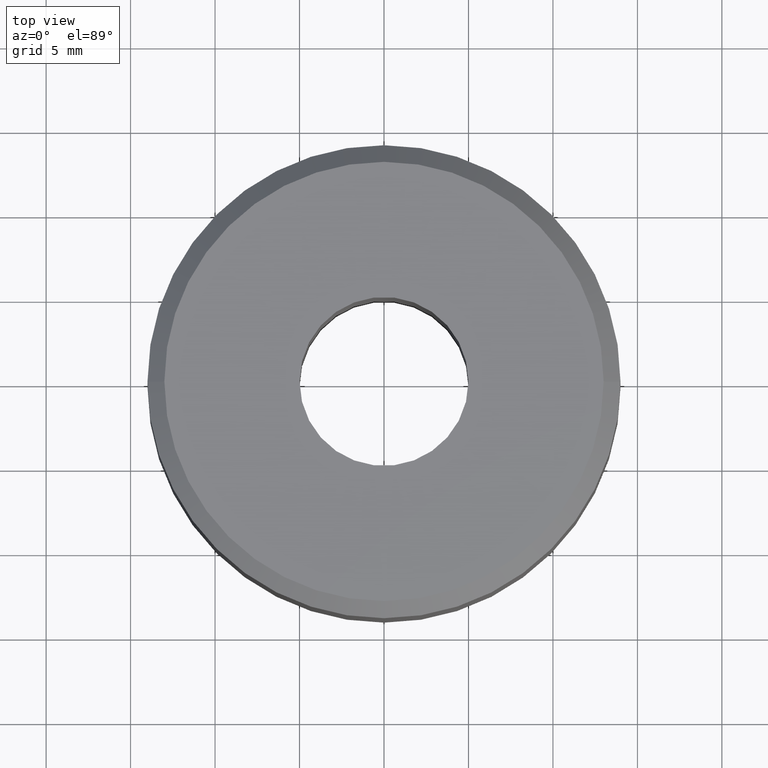
[diagram: clean part render]
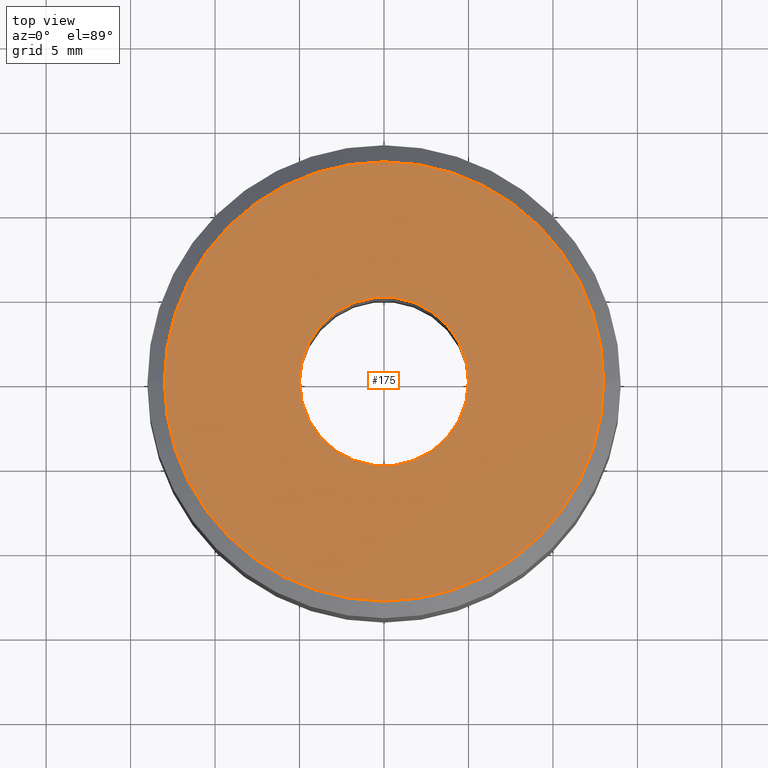
[diagram: same view with one face highlighted and labeled with its STEP entity id]
A machine part, top view. The second image highlights one B-rep face of the part: STEP entity #175.
In plain terms, the highlighted planar face has unit normal (0, 0, 1).
Its self-contained STEP definition (entity closure, byte-faithful):
#1 = DIRECTION ( 'NONE',  ( 0.0000000000000000000, 0.0000000000000000000, 1.000000000000000000 ) ) ;
#8 = ORIENTED_EDGE ( 'NONE', *, *, #141, .F. ) ;
#11 = EDGE_CURVE ( 'NONE', #282, #342, #228, .T. ) ;
#27 = EDGE_CURVE ( 'NONE', #161, #101, #286, .T. ) ;
#33 = CARTESIAN_POINT ( 'NONE',  ( -4.999999999999999100, -5.551115123125782700E-014, 17.50000000000007100 ) ) ;
#35 = CIRCLE ( 'NONE', #50, 4.999999999999999100 ) ;
#38 = CARTESIAN_POINT ( 'NONE',  ( 0.0000000000000000000, -5.551115123125782700E-014, 17.50000000000007100 ) ) ;
#39 = DIRECTION ( 'NONE',  ( -1.000000000000000000, 0.0000000000000000000, 0.0000000000000000000 ) ) ;
#50 = AXIS2_PLACEMENT_3D ( 'NONE', #81, #165, #150 ) ;
#81 = CARTESIAN_POINT ( 'NONE',  ( 0.0000000000000000000, -5.551115123125782700E-014, 17.50000000000007100 ) ) ;
#100 = DIRECTION ( 'NONE',  ( 1.000000000000000000, 0.0000000000000000000, -0.0000000000000000000 ) ) ;
#101 = VERTEX_POINT ( 'NONE', #213 ) ;
#126 = PLANE ( 'NONE',  #181 ) ;
#131 = EDGE_CURVE ( 'NONE', #101, #161, #35, .T. ) ;
#138 = CARTESIAN_POINT ( 'NONE',  ( 0.0000000000000000000, -5.551115123125782700E-014, 17.50000000000007100 ) ) ;
#141 = EDGE_CURVE ( 'NONE', #342, #282, #214, .T. ) ;
#150 = DIRECTION ( 'NONE',  ( -1.000000000000000000, 0.0000000000000000000, 0.0000000000000000000 ) ) ;
#157 = FACE_BOUND ( 'NONE', #314, .T. ) ;
#161 = VERTEX_POINT ( 'NONE', #33 ) ;
#165 = DIRECTION ( 'NONE',  ( -0.0000000000000000000, -0.0000000000000000000, -1.000000000000000000 ) ) ;
#175 = ADVANCED_FACE ( 'NONE', ( #157, #273 ), #126, .T. ) ;
#181 = AXIS2_PLACEMENT_3D ( 'NONE', #278, #1, #100 ) ;
#190 = AXIS2_PLACEMENT_3D ( 'NONE', #226, #250, #39 ) ;
#213 = CARTESIAN_POINT ( 'NONE',  ( 4.999999999999999100, -5.489882783168415100E-014, 17.50000000000007100 ) ) ;
#214 = CIRCLE ( 'NONE', #190, 13.00000000000012300 ) ;
#226 = CARTESIAN_POINT ( 'NONE',  ( 0.0000000000000000000, -5.551115123125782700E-014, 17.50000000000007100 ) ) ;
#228 = CIRCLE ( 'NONE', #319, 13.00000000000012300 ) ;
#229 = CARTESIAN_POINT ( 'NONE',  ( 13.00000000000012300, -5.385787805240889000E-014, 17.50000000000007100 ) ) ;
#239 = CARTESIAN_POINT ( 'NONE',  ( -13.00000000000012300, -5.551115123125782700E-014, 17.50000000000007100 ) ) ;
#247 = DIRECTION ( 'NONE',  ( -0.0000000000000000000, -0.0000000000000000000, -1.000000000000000000 ) ) ;
#248 = DIRECTION ( 'NONE',  ( -1.000000000000000000, 0.0000000000000000000, 0.0000000000000000000 ) ) ;
#250 = DIRECTION ( 'NONE',  ( -0.0000000000000000000, -0.0000000000000000000, -1.000000000000000000 ) ) ;
#264 = ORIENTED_EDGE ( 'NONE', *, *, #27, .T. ) ;
#273 = FACE_OUTER_BOUND ( 'NONE', #331, .T. ) ;
#278 = CARTESIAN_POINT ( 'NONE',  ( 0.0000000000000000000, 13.00000000000006800, 17.50000000000007100 ) ) ;
#282 = VERTEX_POINT ( 'NONE', #239 ) ;
#286 = CIRCLE ( 'NONE', #303, 4.999999999999999100 ) ;
#296 = ORIENTED_EDGE ( 'NONE', *, *, #131, .T. ) ;
#303 = AXIS2_PLACEMENT_3D ( 'NONE', #38, #322, #248 ) ;
#314 = EDGE_LOOP ( 'NONE', ( #264, #296 ) ) ;
#319 = AXIS2_PLACEMENT_3D ( 'NONE', #138, #247, #327 ) ;
#321 = ORIENTED_EDGE ( 'NONE', *, *, #11, .F. ) ;
#322 = DIRECTION ( 'NONE',  ( -0.0000000000000000000, -0.0000000000000000000, -1.000000000000000000 ) ) ;
#327 = DIRECTION ( 'NONE',  ( -1.000000000000000000, 0.0000000000000000000, 0.0000000000000000000 ) ) ;
#331 = EDGE_LOOP ( 'NONE', ( #321, #8 ) ) ;
#342 = VERTEX_POINT ( 'NONE', #229 ) ;